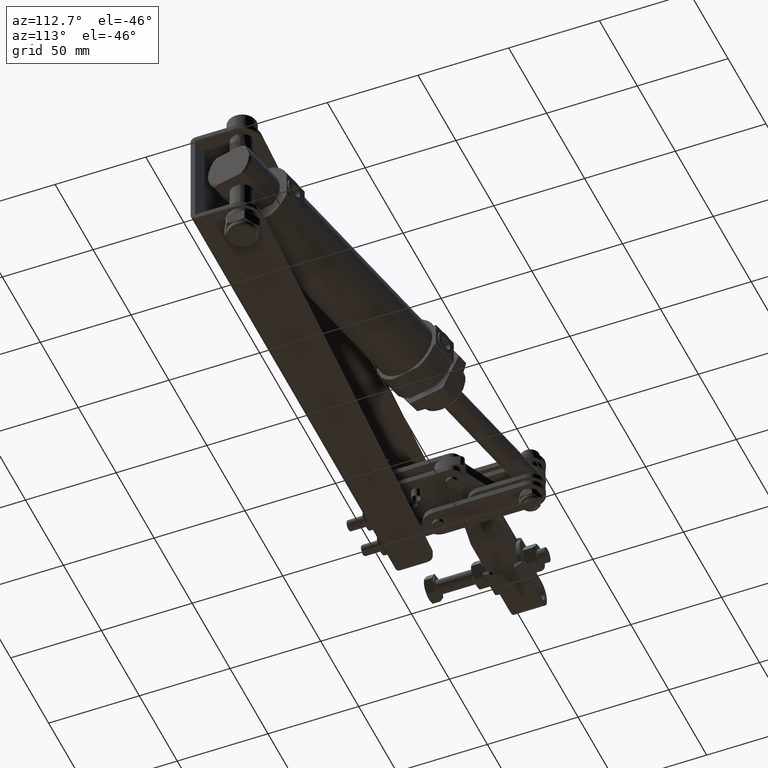
[diagram: clean part render]
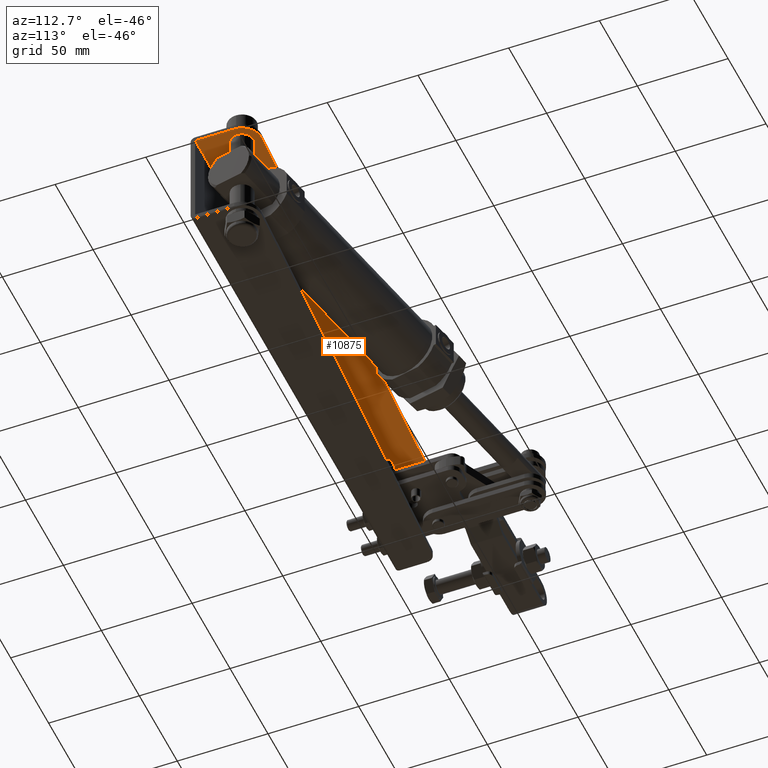
[diagram: same view with one face highlighted and labeled with its STEP entity id]
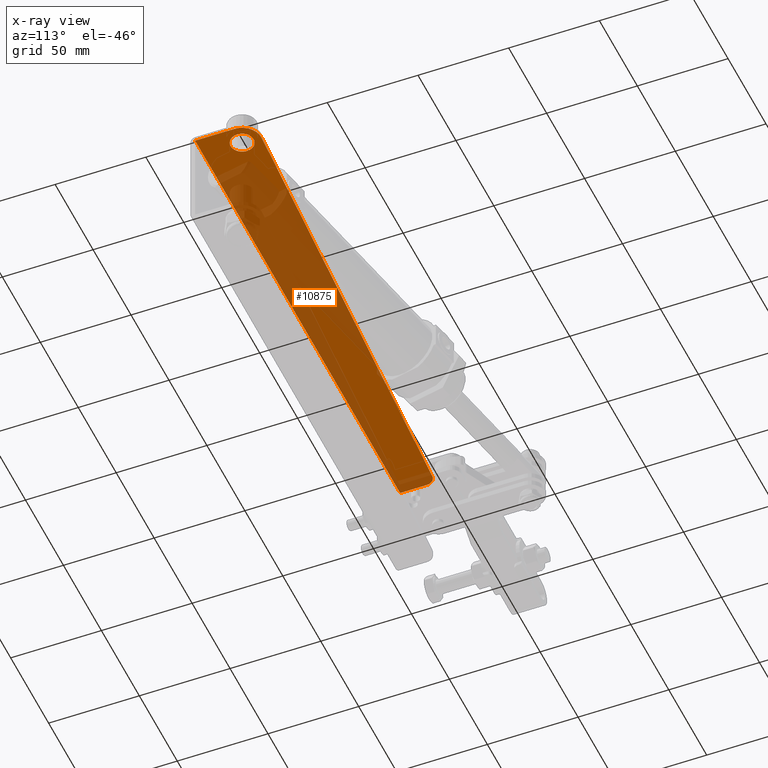
[diagram: x-ray of the same camera — body ghosted, the highlighted face saturated]
A machine part, auxiliary view. The second image highlights one B-rep face of the part: STEP entity #10875.
The next image is the same camera in x-ray: the body ghosted, the highlighted face saturated — about 59% of this face is hidden behind the body in this view.
In plain terms, the highlighted planar face has unit normal (0, -0, 1).
Its self-contained STEP definition (entity closure, byte-faithful):
#315 = DIRECTION ( 'NONE',  ( 0.0000000000000000000, -1.000000000000000000, -3.903127820947816000E-016 ) ) ;
#498 = AXIS2_PLACEMENT_3D ( 'NONE', #8161, #21529, #10082 ) ;
#833 = EDGE_CURVE ( 'NONE', #1535, #24403, #19654, .T. ) ;
#976 = ORIENTED_EDGE ( 'NONE', *, *, #3716, .T. ) ;
#1535 = VERTEX_POINT ( 'NONE', #18013 ) ;
#2404 = LINE ( 'NONE', #5535, #11957 ) ;
#3716 = EDGE_CURVE ( 'NONE', #23597, #1535, #10208, .T. ) ;
#4697 = CARTESIAN_POINT ( 'NONE',  ( -34.99999999999999300, -2.499999999999999100, 27.00000000000000400 ) ) ;
#5009 = DIRECTION ( 'NONE',  ( 6.938893903907229400E-016, -1.000000000000000000, -6.938893903907229400E-016 ) ) ;
#5535 = CARTESIAN_POINT ( 'NONE',  ( 235.0000000000000300, 0.01000000000000002600, 27.00000000000000400 ) ) ;
#5798 = ORIENTED_EDGE ( 'NONE', *, *, #19450, .T. ) ;
#5814 = DIRECTION ( 'NONE',  ( 0.0000000000000000000, -3.903127820947816000E-016, 1.000000000000000000 ) ) ;
#5849 = DIRECTION ( 'NONE',  ( -0.9988396043936425000, -0.04816061352133833200, -1.879770305090511700E-017 ) ) ;
#5867 = CARTESIAN_POINT ( 'NONE',  ( 224.5000000000021600, 21.49999999997768900, 26.99999999999812400 ) ) ;
#6112 = CARTESIAN_POINT ( 'NONE',  ( 235.0000000000000300, 21.50000000000000000, 27.00000000000001100 ) ) ;
#6275 = VERTEX_POINT ( 'NONE', #11331 ) ;
#6303 = AXIS2_PLACEMENT_3D ( 'NONE', #23239, #11758, #315 ) ;
#6748 = CARTESIAN_POINT ( 'NONE',  ( 235.0000000000000300, -2.499999999999999100, 27.00000000000000400 ) ) ;
#7163 = AXIS2_PLACEMENT_3D ( 'NONE', #5867, #19217, #7769 ) ;
#7207 = LINE ( 'NONE', #19196, #16750 ) ;
#7523 = EDGE_LOOP ( 'NONE', ( #976, #19972, #18163, #21381, #16473, #21354 ) ) ;
#7698 = VERTEX_POINT ( 'NONE', #13418 ) ;
#7769 = DIRECTION ( 'NONE',  ( 0.9687443208932452500, 0.2480613648617714400, 0.0000000000000000000 ) ) ;
#8161 = CARTESIAN_POINT ( 'NONE',  ( 224.5000000000021600, 21.49999999997768900, 26.99999999999812400 ) ) ;
#8223 = VECTOR ( 'NONE', #14417, 1000.000000000000000 ) ;
#8646 = CARTESIAN_POINT ( 'NONE',  ( -29.99999999999998900, 14.73527410060754100, 27.00000000000001100 ) ) ;
#10082 = DIRECTION ( 'NONE',  ( 0.9687443208932452500, 0.2480613648617714400, 0.0000000000000000000 ) ) ;
#10188 = CARTESIAN_POINT ( 'NONE',  ( 218.3484735623300700, 19.92481033310544100, 26.99999999999812400 ) ) ;
#10208 = LINE ( 'NONE', #4697, #15280 ) ;
#10875 = ADVANCED_FACE ( 'NONE', ( #14983, #20078 ), #23148, .F. ) ;
#11331 = CARTESIAN_POINT ( 'NONE',  ( 230.6515264376742800, 23.07518966684994100, 26.99999999999812400 ) ) ;
#11758 = DIRECTION ( 'NONE',  ( 0.0000000000000000000, -3.903127820947816000E-016, 1.000000000000000000 ) ) ;
#11957 = VECTOR ( 'NONE', #22748, 1000.000000000000000 ) ;
#12014 = CIRCLE ( 'NONE', #7163, 6.350000000000004100 ) ;
#13279 = LINE ( 'NONE', #6748, #8223 ) ;
#13418 = CARTESIAN_POINT ( 'NONE',  ( 223.9943135580259600, 31.98781584613324800, 27.00000000000000400 ) ) ;
#14165 = AXIS2_PLACEMENT_3D ( 'NONE', #8646, #24327, #5009 ) ;
#14417 = DIRECTION ( 'NONE',  ( 0.0000000000000000000, 1.000000000000000000, 3.903127820947816000E-016 ) ) ;
#14983 = FACE_BOUND ( 'NONE', #18749, .T. ) ;
#15280 = VECTOR ( 'NONE', #16217, 1000.000000000000000 ) ;
#16217 = DIRECTION ( 'NONE',  ( 0.0000000000000000000, 1.000000000000000000, 3.903127820947816000E-016 ) ) ;
#16473 = ORIENTED_EDGE ( 'NONE', *, *, #22240, .F. ) ;
#16750 = VECTOR ( 'NONE', #5849, 1000.000000000000100 ) ;
#17177 = VERTEX_POINT ( 'NONE', #6112 ) ;
#17232 = CARTESIAN_POINT ( 'NONE',  ( 224.5000000000000300, 21.50000000000000000, 27.00000000000001100 ) ) ;
#17249 = VERTEX_POINT ( 'NONE', #21561 ) ;
#17401 = CIRCLE ( 'NONE', #498, 6.350000000000004100 ) ;
#18013 = CARTESIAN_POINT ( 'NONE',  ( -34.99999999999999300, 14.73527410060754100, 27.00000000000001100 ) ) ;
#18163 = ORIENTED_EDGE ( 'NONE', *, *, #23462, .F. ) ;
#18184 = EDGE_CURVE ( 'NONE', #17177, #7698, #20502, .T. ) ;
#18749 = EDGE_LOOP ( 'NONE', ( #21275, #5798 ) ) ;
#18953 = VERTEX_POINT ( 'NONE', #10188 ) ;
#19155 = DIRECTION ( 'NONE',  ( 0.0000000000000000000, -1.000000000000000000, -3.304235192336764200E-016 ) ) ;
#19196 = CARTESIAN_POINT ( 'NONE',  ( 233.3154459129628700, 32.43724881910780800, 27.00000000000001800 ) ) ;
#19217 = DIRECTION ( 'NONE',  ( 0.0000000000000000000, 0.0000000000000000000, 1.000000000000000000 ) ) ;
#19450 = EDGE_CURVE ( 'NONE', #6275, #18953, #17401, .T. ) ;
#19654 = CIRCLE ( 'NONE', #14165, 4.999999999999999100 ) ;
#19972 = ORIENTED_EDGE ( 'NONE', *, *, #833, .T. ) ;
#20078 = FACE_OUTER_BOUND ( 'NONE', #7523, .T. ) ;
#20345 = EDGE_CURVE ( 'NONE', #17249, #23597, #2404, .T. ) ;
#20502 = CIRCLE ( 'NONE', #20979, 10.50000000000003600 ) ;
#20979 = AXIS2_PLACEMENT_3D ( 'NONE', #17232, #5814, #19155 ) ;
#21275 = ORIENTED_EDGE ( 'NONE', *, *, #23013, .T. ) ;
#21354 = ORIENTED_EDGE ( 'NONE', *, *, #20345, .T. ) ;
#21381 = ORIENTED_EDGE ( 'NONE', *, *, #18184, .F. ) ;
#21529 = DIRECTION ( 'NONE',  ( 0.0000000000000000000, 0.0000000000000000000, 1.000000000000000000 ) ) ;
#21561 = CARTESIAN_POINT ( 'NONE',  ( 235.0000000000000300, 0.01000000000000002600, 27.00000000000000400 ) ) ;
#22240 = EDGE_CURVE ( 'NONE', #17249, #17177, #13279, .T. ) ;
#22748 = DIRECTION ( 'NONE',  ( -1.000000000000000000, -0.0000000000000000000, -0.0000000000000000000 ) ) ;
#23013 = EDGE_CURVE ( 'NONE', #18953, #6275, #12014, .T. ) ;
#23148 = PLANE ( 'NONE',  #6303 ) ;
#23239 = CARTESIAN_POINT ( 'NONE',  ( 235.0000000000000300, -2.499999999999999100, 27.00000000000000400 ) ) ;
#23399 = CARTESIAN_POINT ( 'NONE',  ( -34.99999999999999300, 0.01000000000000002600, 27.00000000000000400 ) ) ;
#23462 = EDGE_CURVE ( 'NONE', #7698, #24403, #7207, .T. ) ;
#23597 = VERTEX_POINT ( 'NONE', #23399 ) ;
#24327 = DIRECTION ( 'NONE',  ( -0.0000000000000000000, 3.903127820947816000E-016, -1.000000000000000000 ) ) ;
#24403 = VERTEX_POINT ( 'NONE', #24753 ) ;
#24753 = CARTESIAN_POINT ( 'NONE',  ( -30.24080306760675200, 19.72947212257575000, 27.00000000000001400 ) ) ;